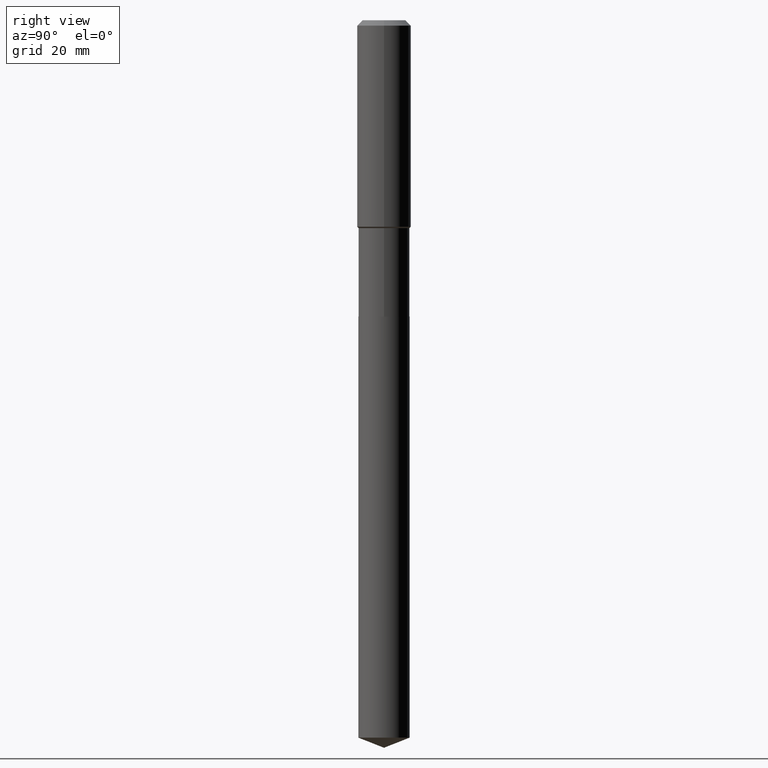
[diagram: clean part render]
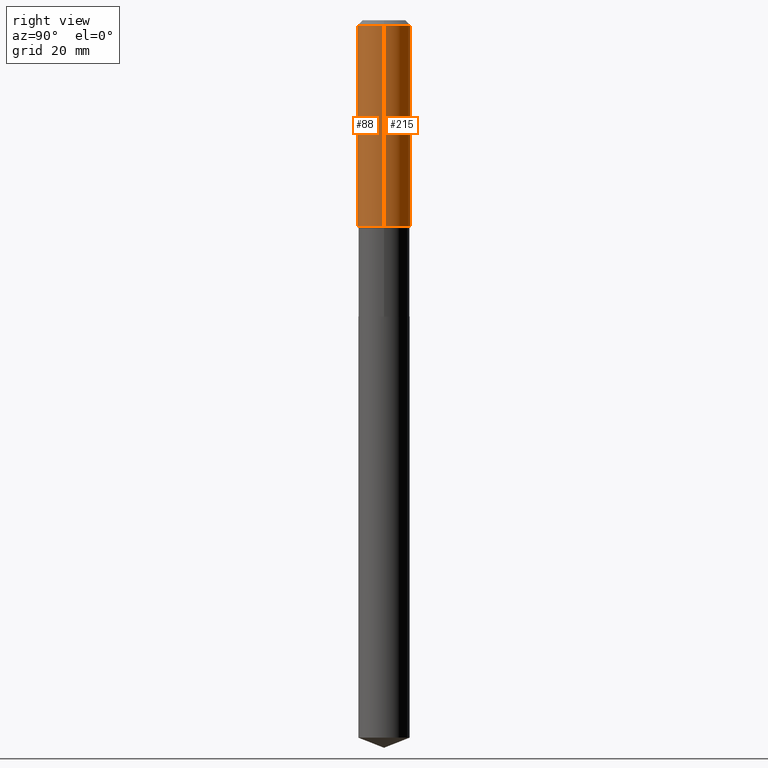
[diagram: same view with one multi-face feature highlighted, each face labeled with its STEP entity id]
A machine part, right view. The highlighted faces form ONE feature: a constant-radius fillet chain: 2 tangent blend faces with common blend radius 5.9995 mm. The faces share edges in the B-rep.
Their STEP definitions:
[1] entity #215 (Cylinder):
#7 = CIRCLE ( 'NONE', #482, 0.2361999999999999933 ) ;
#10 = CARTESIAN_POINT ( 'NONE',  ( 0.000000000000000000, 0.000000000000000000, 0.000000000000000000 ) ) ;
#12 = VERTEX_POINT ( 'NONE', #77 ) ;
#17 = EDGE_CURVE ( 'NONE', #340, #80, #435, .T. ) ;
#23 = EDGE_CURVE ( 'NONE', #12, #447, #277, .T. ) ;
#39 = CARTESIAN_POINT ( 'NONE',  ( 1.155239464041865331E-30, -1.649375784469511612E-16, -0.04724000000000027483 ) ) ;
#46 = DIRECTION ( 'NONE',  ( -2.445468806185136597E-29, 3.491481338843145583E-15, 1.000000000000000000 ) ) ;
#55 = AXIS2_PLACEMENT_3D ( 'NONE', #10, #239, #231 ) ;
#74 = EDGE_LOOP ( 'NONE', ( #465, #300, #463, #262 ) ) ;
#77 = CARTESIAN_POINT ( 'NONE',  ( -0.2362000000000002153, -4.643374170244043187E-15, -1.810600000000000653 ) ) ;
#80 = VERTEX_POINT ( 'NONE', #126 ) ;
#96 = DIRECTION ( 'NONE',  ( -2.445468806185136877E-29, 3.491481338843145188E-15, 1.000000000000000000 ) ) ;
#115 = VECTOR ( 'NONE', #96, 39.37007874015748143 ) ;
#126 = CARTESIAN_POINT ( 'NONE',  ( 0.2361999999999999933, -1.814313362916447440E-15, -0.04724000000000027483 ) ) ;
#134 = CARTESIAN_POINT ( 'NONE',  ( -0.2361999999999999933, -1.565004903412818656E-15, -0.04724000000000027483 ) ) ;
#170 = EDGE_CURVE ( 'NONE', #80, #447, #7, .T. ) ;
#176 = CARTESIAN_POINT ( 'NONE',  ( 0.2362000000000002153, -7.971051896578899262E-15, -1.810600000000000653 ) ) ;
#192 = DIRECTION ( 'NONE',  ( 1.000000000000000000, -6.982962677686266711E-15, 0.000000000000000000 ) ) ;
#211 = DIRECTION ( 'NONE',  ( -2.445468806185136877E-29, 3.491481338843145188E-15, 1.000000000000000000 ) ) ;
#215 = ADVANCED_FACE ( 'NONE', ( #271 ), #266, .T. ) ;
#222 = AXIS2_PLACEMENT_3D ( 'NONE', #242, #304, #391 ) ;
#223 = CIRCLE ( 'NONE', #222, 0.2362000000000002153 ) ;
#231 = DIRECTION ( 'NONE',  ( 1.000000000000000000, -6.982962677686266711E-15, 4.876176775795935793E-29 ) ) ;
#239 = DIRECTION ( 'NONE',  ( -2.445468806185136597E-29, 3.491481338843145583E-15, 1.000000000000000000 ) ) ;
#242 = CARTESIAN_POINT ( 'NONE',  ( 4.427765820478809902E-29, -6.321676112109401159E-15, -1.810600000000000653 ) ) ;
#262 = ORIENTED_EDGE ( 'NONE', *, *, #17, .F. ) ;
#266 = CYLINDRICAL_SURFACE ( 'NONE', #55, 0.2362000000000001043 ) ;
#267 = EDGE_CURVE ( 'NONE', #340, #12, #223, .T. ) ;
#271 = FACE_OUTER_BOUND ( 'NONE', #74, .T. ) ;
#277 = LINE ( 'NONE', #473, #115 ) ;
#300 = ORIENTED_EDGE ( 'NONE', *, *, #23, .T. ) ;
#304 = DIRECTION ( 'NONE',  ( -2.445468806185136597E-29, 3.491481338843145583E-15, 1.000000000000000000 ) ) ;
#319 = CARTESIAN_POINT ( 'NONE',  ( 0.2362000000000001043, -1.649375784469496920E-15, 1.151752954443000508E-29 ) ) ;
#340 = VERTEX_POINT ( 'NONE', #176 ) ;
#374 = VECTOR ( 'NONE', #211, 39.37007874015748143 ) ;
#391 = DIRECTION ( 'NONE',  ( 1.000000000000000000, -6.982962677686266711E-15, 0.000000000000000000 ) ) ;
#435 = LINE ( 'NONE', #319, #374 ) ;
#447 = VERTEX_POINT ( 'NONE', #134 ) ;
#463 = ORIENTED_EDGE ( 'NONE', *, *, #170, .F. ) ;
#465 = ORIENTED_EDGE ( 'NONE', *, *, #267, .T. ) ;
#473 = CARTESIAN_POINT ( 'NONE',  ( -0.2362000000000001043, 1.678301941865357380E-15, -1.161852468318209317E-29 ) ) ;
#482 = AXIS2_PLACEMENT_3D ( 'NONE', #39, #46, #192 ) ;
[2] entity #88 (Cylinder):
#3 = ORIENTED_EDGE ( 'NONE', *, *, #23, .F. ) ;
#12 = VERTEX_POINT ( 'NONE', #77 ) ;
#17 = EDGE_CURVE ( 'NONE', #340, #80, #435, .T. ) ;
#21 = FACE_OUTER_BOUND ( 'NONE', #218, .T. ) ;
#23 = EDGE_CURVE ( 'NONE', #12, #447, #277, .T. ) ;
#77 = CARTESIAN_POINT ( 'NONE',  ( -0.2362000000000002153, -4.643374170244043187E-15, -1.810600000000000653 ) ) ;
#80 = VERTEX_POINT ( 'NONE', #126 ) ;
#88 = ADVANCED_FACE ( 'NONE', ( #21 ), #132, .T. ) ;
#96 = DIRECTION ( 'NONE',  ( -2.445468806185136877E-29, 3.491481338843145188E-15, 1.000000000000000000 ) ) ;
#115 = VECTOR ( 'NONE', #96, 39.37007874015748143 ) ;
#126 = CARTESIAN_POINT ( 'NONE',  ( 0.2361999999999999933, -1.814313362916447440E-15, -0.04724000000000027483 ) ) ;
#132 = CYLINDRICAL_SURFACE ( 'NONE', #155, 0.2362000000000001043 ) ;
#134 = CARTESIAN_POINT ( 'NONE',  ( -0.2361999999999999933, -1.565004903412818656E-15, -0.04724000000000027483 ) ) ;
#137 = EDGE_CURVE ( 'NONE', #447, #80, #265, .T. ) ;
#155 = AXIS2_PLACEMENT_3D ( 'NONE', #392, #175, #399 ) ;
#162 = ORIENTED_EDGE ( 'NONE', *, *, #17, .T. ) ;
#174 = CARTESIAN_POINT ( 'NONE',  ( 4.427765820478809902E-29, -6.321676112109401159E-15, -1.810600000000000653 ) ) ;
#175 = DIRECTION ( 'NONE',  ( -2.445468806185136597E-29, 3.491481338843145583E-15, 1.000000000000000000 ) ) ;
#176 = CARTESIAN_POINT ( 'NONE',  ( 0.2362000000000002153, -7.971051896578899262E-15, -1.810600000000000653 ) ) ;
#211 = DIRECTION ( 'NONE',  ( -2.445468806185136877E-29, 3.491481338843145188E-15, 1.000000000000000000 ) ) ;
#218 = EDGE_LOOP ( 'NONE', ( #3, #422, #162, #230 ) ) ;
#230 = ORIENTED_EDGE ( 'NONE', *, *, #137, .F. ) ;
#265 = CIRCLE ( 'NONE', #412, 0.2361999999999999933 ) ;
#277 = LINE ( 'NONE', #473, #115 ) ;
#279 = DIRECTION ( 'NONE',  ( 1.000000000000000000, -6.982962677686266711E-15, 0.000000000000000000 ) ) ;
#311 = DIRECTION ( 'NONE',  ( -2.445468806185136597E-29, 3.491481338843145583E-15, 1.000000000000000000 ) ) ;
#313 = EDGE_CURVE ( 'NONE', #12, #340, #381, .T. ) ;
#319 = CARTESIAN_POINT ( 'NONE',  ( 0.2362000000000001043, -1.649375784469496920E-15, 1.151752954443000508E-29 ) ) ;
#340 = VERTEX_POINT ( 'NONE', #176 ) ;
#358 = DIRECTION ( 'NONE',  ( -2.445468806185136597E-29, 3.491481338843145583E-15, 1.000000000000000000 ) ) ;
#363 = CARTESIAN_POINT ( 'NONE',  ( 1.155239464041865331E-30, -1.649375784469511612E-16, -0.04724000000000027483 ) ) ;
#369 = DIRECTION ( 'NONE',  ( 1.000000000000000000, -6.982962677686266711E-15, 0.000000000000000000 ) ) ;
#374 = VECTOR ( 'NONE', #211, 39.37007874015748143 ) ;
#381 = CIRCLE ( 'NONE', #460, 0.2362000000000002153 ) ;
#392 = CARTESIAN_POINT ( 'NONE',  ( 0.000000000000000000, 0.000000000000000000, 0.000000000000000000 ) ) ;
#399 = DIRECTION ( 'NONE',  ( 1.000000000000000000, -6.982962677686266711E-15, 4.876176775795935793E-29 ) ) ;
#412 = AXIS2_PLACEMENT_3D ( 'NONE', #363, #311, #279 ) ;
#422 = ORIENTED_EDGE ( 'NONE', *, *, #313, .T. ) ;
#435 = LINE ( 'NONE', #319, #374 ) ;
#447 = VERTEX_POINT ( 'NONE', #134 ) ;
#460 = AXIS2_PLACEMENT_3D ( 'NONE', #174, #358, #369 ) ;
#473 = CARTESIAN_POINT ( 'NONE',  ( -0.2362000000000001043, 1.678301941865357380E-15, -1.161852468318209317E-29 ) ) ;